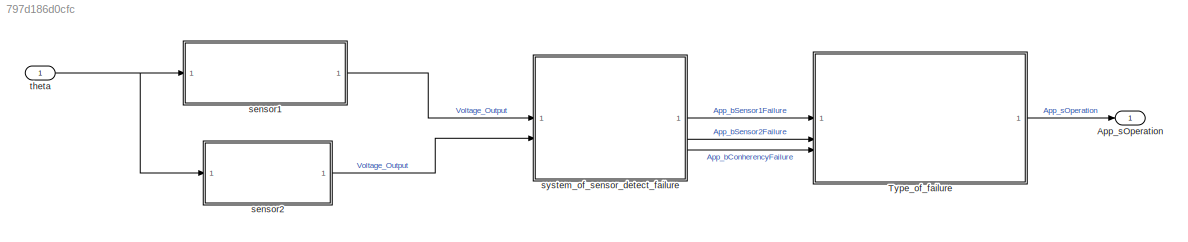
MODEL slx_797d186d0cfc
KIND model
CONFIG AbsTol = auto
CONFIG EnableMultiTasking = off
CONFIG FixedStep = auto
CONFIG MaxStep = auto
CONFIG MinStep = auto
CONFIG RelTol = 1e-3
CONFIG SampleTimeConstraint = Unconstrained
CONFIG SolverName = VariableStepAuto
CONFIG StartFcn = init
CONFIG StartTime = 0.0
CONFIG StopTime = 10.0
BLOCK [Outport] App_sOperation
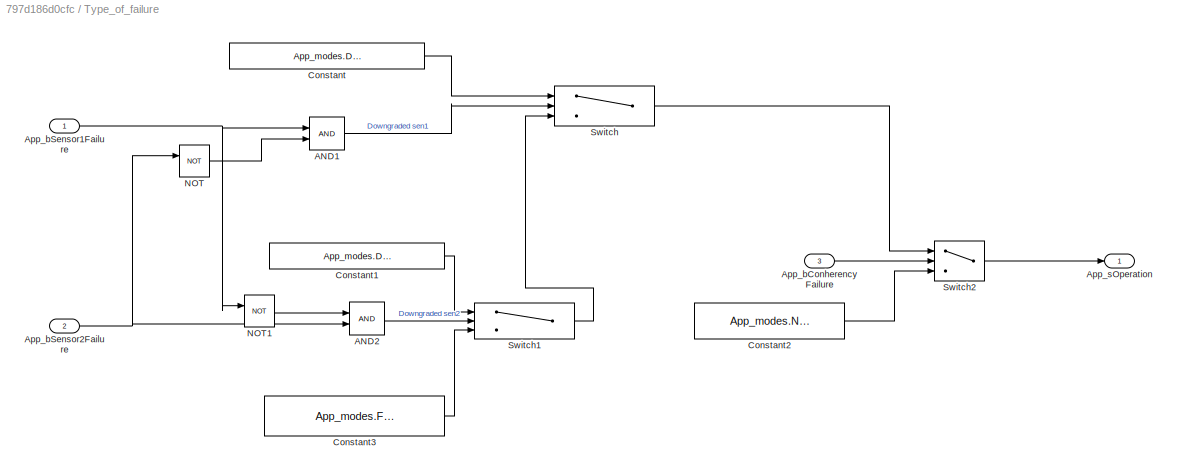
BLOCK [SubSystem] Type_of_failure
  InitFcn = init
BLOCK [Logic] Type_of_failure/AND1
  AllPortsSameDT = off
  OutDataTypeStr = boolean
BLOCK [Logic] Type_of_failure/AND2
  AllPortsSameDT = off
  OutDataTypeStr = boolean
BLOCK [Inport] Type_of_failure/App_bConherencyFailure
  Port = 3
BLOCK [Inport] Type_of_failure/App_bSensor1Failure
BLOCK [Inport] Type_of_failure/App_bSensor2Failure
  Port = 2
BLOCK [Outport] Type_of_failure/App_sOperation
  LockScale = on
  OutDataTypeStr = Enum: App_modes
BLOCK [Constant] Type_of_failure/Constant
  OutDataTypeStr = Enum: App_modes
  Value = App_modes.Downgraded_sen_2
BLOCK [Constant] Type_of_failure/Constant1
  OutDataTypeStr = Enum: App_modes
  Value = App_modes.Downgraded_sen_1
BLOCK [Constant] Type_of_failure/Constant2
  OutDataTypeStr = Enum: App_modes
  Value = App_modes.Normal
BLOCK [Constant] Type_of_failure/Constant3
  OutDataTypeStr = Enum: App_modes
  Value = App_modes.Failure
BLOCK [Logic] Type_of_failure/NOT
  AllPortsSameDT = off
  IconShape = distinctive
  Operator = NOT
  OutDataTypeStr = boolean
BLOCK [Logic] Type_of_failure/NOT1
  AllPortsSameDT = off
  IconShape = distinctive
  Operator = NOT
  OutDataTypeStr = boolean
BLOCK [Switch] Type_of_failure/Switch
  Criteria = u2 ~= 0
  InputSameDT = off
  SaturateOnIntegerOverflow = off
BLOCK [Switch] Type_of_failure/Switch1
  Criteria = u2 ~= 0
  InputSameDT = off
  SaturateOnIntegerOverflow = off
BLOCK [Switch] Type_of_failure/Switch2
  Criteria = u2 ~= 0
  InputSameDT = off
  SaturateOnIntegerOverflow = off
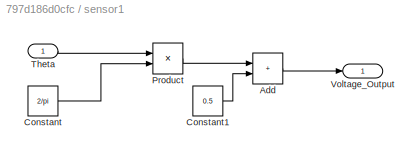
BLOCK [SubSystem] sensor1
BLOCK [Sum] sensor1/Add
  IconShape = rectangular
BLOCK [Constant] sensor1/Constant
  Value = 2/pi
BLOCK [Constant] sensor1/Constant1
  Value = 0.5
BLOCK [Product] sensor1/Product
BLOCK [Inport] sensor1/Theta
BLOCK [Outport] sensor1/Voltage_Output
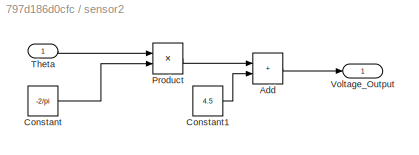
BLOCK [SubSystem] sensor2
BLOCK [Sum] sensor2/Add
  IconShape = rectangular
BLOCK [Constant] sensor2/Constant
  Value = -2/pi
BLOCK [Constant] sensor2/Constant1
  Value = 4.5
BLOCK [Product] sensor2/Product
BLOCK [Inport] sensor2/Theta
BLOCK [Outport] sensor2/Voltage_Output
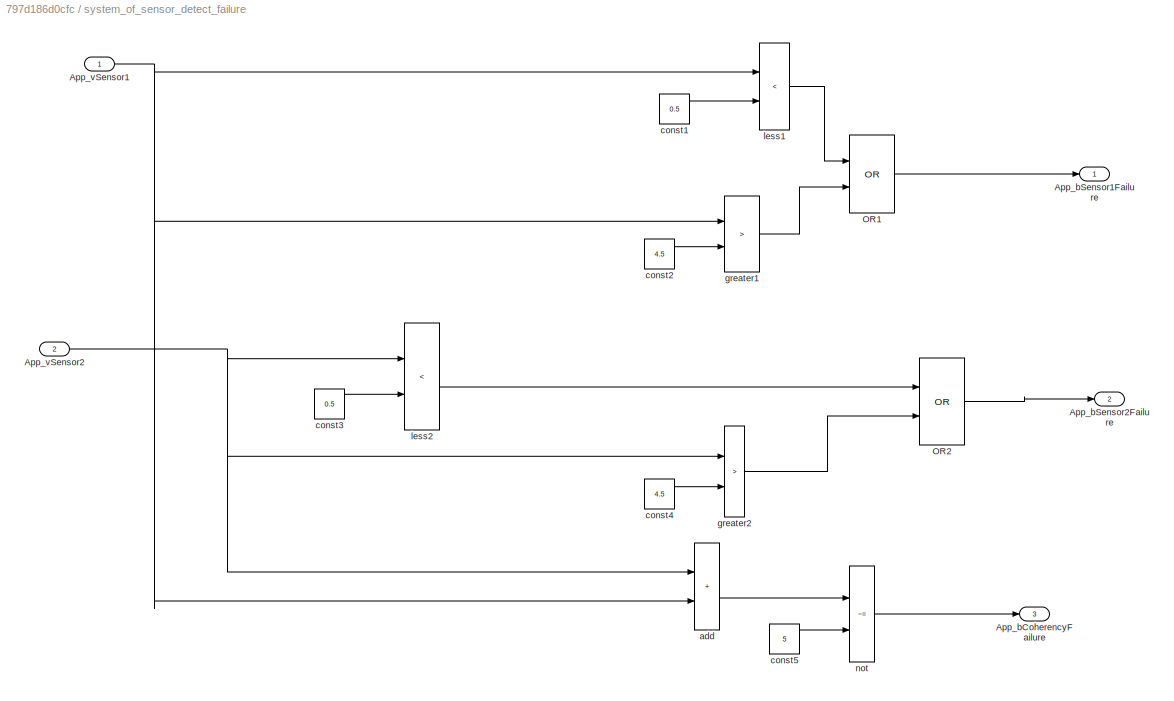
BLOCK [SubSystem] system_of_sensor_detect_failure
BLOCK [Outport] system_of_sensor_detect_failure/App_bCoherencyFailure
  Port = 3
BLOCK [Outport] system_of_sensor_detect_failure/App_bSensor1Failure
BLOCK [Outport] system_of_sensor_detect_failure/App_bSensor2Failure
  Port = 2
BLOCK [Inport] system_of_sensor_detect_failure/App_vSensor1
BLOCK [Inport] system_of_sensor_detect_failure/App_vSensor2
  Port = 2
BLOCK [Logic] system_of_sensor_detect_failure/OR1
  AllPortsSameDT = off
  Operator = OR
  OutDataTypeStr = boolean
BLOCK [Logic] system_of_sensor_detect_failure/OR2
  AllPortsSameDT = off
  Operator = OR
  OutDataTypeStr = boolean
BLOCK [Sum] system_of_sensor_detect_failure/add
  IconShape = rectangular
BLOCK [Constant] system_of_sensor_detect_failure/const1
  Value = 0.5
BLOCK [Constant] system_of_sensor_detect_failure/const2
  Value = 4.5
BLOCK [Constant] system_of_sensor_detect_failure/const3
  Value = 0.5
BLOCK [Constant] system_of_sensor_detect_failure/const4
  Value = 4.5
BLOCK [Constant] system_of_sensor_detect_failure/const5
  Value = 5
BLOCK [RelationalOperator] system_of_sensor_detect_failure/greater1
  InputSameDT = off
  Operator = >
  OutDataTypeStr = boolean
  RndMeth = Simplest
BLOCK [RelationalOperator] system_of_sensor_detect_failure/greater2
  InputSameDT = off
  Operator = >
  OutDataTypeStr = boolean
  RndMeth = Simplest
BLOCK [RelationalOperator] system_of_sensor_detect_failure/less1
  InputSameDT = off
  Operator = <
  OutDataTypeStr = boolean
  RndMeth = Simplest
BLOCK [RelationalOperator] system_of_sensor_detect_failure/less2
  InputSameDT = off
  Operator = <
  OutDataTypeStr = boolean
  RndMeth = Simplest
BLOCK [RelationalOperator] system_of_sensor_detect_failure/not
  InputSameDT = off
  Operator = ~=
  OutDataTypeStr = boolean
  RndMeth = Simplest
BLOCK [Inport] theta
LINE Type_of_failure/AND1:1 -> Type_of_failure/Switch:2
LINE Type_of_failure/AND2:1 -> Type_of_failure/Switch1:2
LINE Type_of_failure/App_bConherencyFailure:1 -> Type_of_failure/Switch2:2
NET Type_of_failure/App_bSensor1Failure:1 -> Type_of_failure/AND1:1, Type_of_failure/NOT1:1
NET Type_of_failure/App_bSensor2Failure:1 -> Type_of_failure/AND2:2, Type_of_failure/NOT:1
LINE Type_of_failure/Constant1:1 -> Type_of_failure/Switch1:1
LINE Type_of_failure/Constant2:1 -> Type_of_failure/Switch2:3
LINE Type_of_failure/Constant3:1 -> Type_of_failure/Switch1:3
LINE Type_of_failure/Constant:1 -> Type_of_failure/Switch:1
LINE Type_of_failure/NOT1:1 -> Type_of_failure/AND2:1
LINE Type_of_failure/NOT:1 -> Type_of_failure/AND1:2
LINE Type_of_failure/Switch1:1 -> Type_of_failure/Switch:3
LINE Type_of_failure/Switch2:1 -> Type_of_failure/App_sOperation:1
LINE Type_of_failure/Switch:1 -> Type_of_failure/Switch2:1
LINE Type_of_failure:1 -> App_sOperation:1
LINE sensor1/Add:1 -> sensor1/Voltage_Output:1
LINE sensor1/Constant1:1 -> sensor1/Add:2
LINE sensor1/Constant:1 -> sensor1/Product:2
LINE sensor1/Product:1 -> sensor1/Add:1
LINE sensor1/Theta:1 -> sensor1/Product:1
LINE sensor1:1 -> system_of_sensor_detect_failure:1
LINE sensor2/Add:1 -> sensor2/Voltage_Output:1
LINE sensor2/Constant1:1 -> sensor2/Add:2
LINE sensor2/Constant:1 -> sensor2/Product:2
LINE sensor2/Product:1 -> sensor2/Add:1
LINE sensor2/Theta:1 -> sensor2/Product:1
LINE sensor2:1 -> system_of_sensor_detect_failure:2
NET system_of_sensor_detect_failure/App_vSensor1:1 -> system_of_sensor_detect_failure/add:2, system_of_sensor_detect_failure/greater1:1, system_of_sensor_detect_failure/less1:1
NET system_of_sensor_detect_failure/App_vSensor2:1 -> system_of_sensor_detect_failure/add:1, system_of_sensor_detect_failure/greater2:1, system_of_sensor_detect_failure/less2:1
LINE system_of_sensor_detect_failure/OR1:1 -> system_of_sensor_detect_failure/App_bSensor1Failure:1
LINE system_of_sensor_detect_failure/OR2:1 -> system_of_sensor_detect_failure/App_bSensor2Failure:1
LINE system_of_sensor_detect_failure/add:1 -> system_of_sensor_detect_failure/not:1
LINE system_of_sensor_detect_failure/const1:1 -> system_of_sensor_detect_failure/less1:2
LINE system_of_sensor_detect_failure/const2:1 -> system_of_sensor_detect_failure/greater1:2
LINE system_of_sensor_detect_failure/const3:1 -> system_of_sensor_detect_failure/less2:2
LINE system_of_sensor_detect_failure/const4:1 -> system_of_sensor_detect_failure/greater2:2
LINE system_of_sensor_detect_failure/const5:1 -> system_of_sensor_detect_failure/not:2
LINE system_of_sensor_detect_failure/greater1:1 -> system_of_sensor_detect_failure/OR1:2
LINE system_of_sensor_detect_failure/greater2:1 -> system_of_sensor_detect_failure/OR2:2
LINE system_of_sensor_detect_failure/less1:1 -> system_of_sensor_detect_failure/OR1:1
LINE system_of_sensor_detect_failure/less2:1 -> system_of_sensor_detect_failure/OR2:1
LINE system_of_sensor_detect_failure/not:1 -> system_of_sensor_detect_failure/App_bCoherencyFailure:1
LINE system_of_sensor_detect_failure:1 -> Type_of_failure:1
LINE system_of_sensor_detect_failure:2 -> Type_of_failure:2
LINE system_of_sensor_detect_failure:3 -> Type_of_failure:3
NET theta:1 -> sensor1:1, sensor2:1
note: NET lines group one-source signal fan-out (src -> all destinations, sorted); 1:1 wires keep LINE
